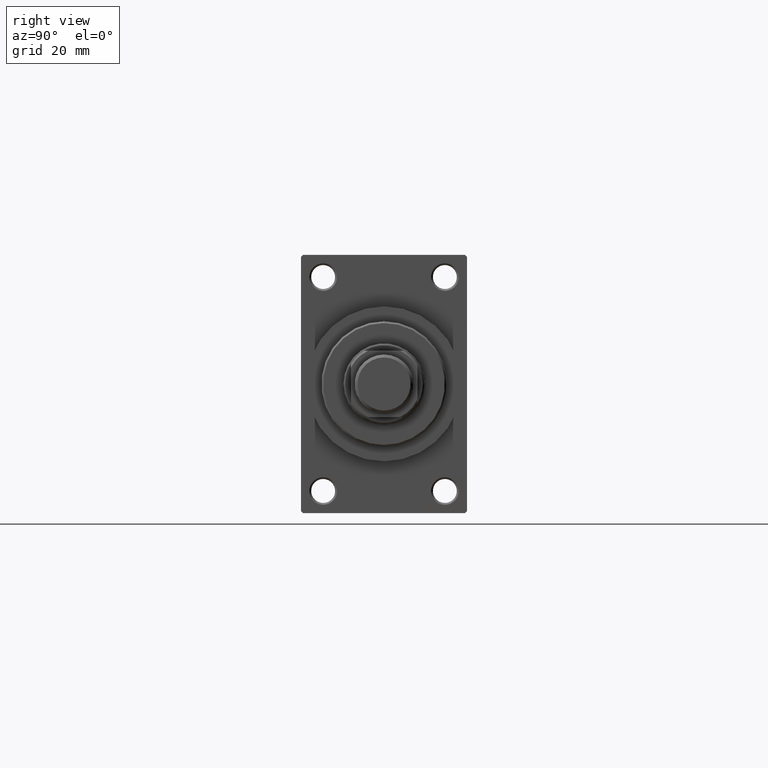
[diagram: clean part render]
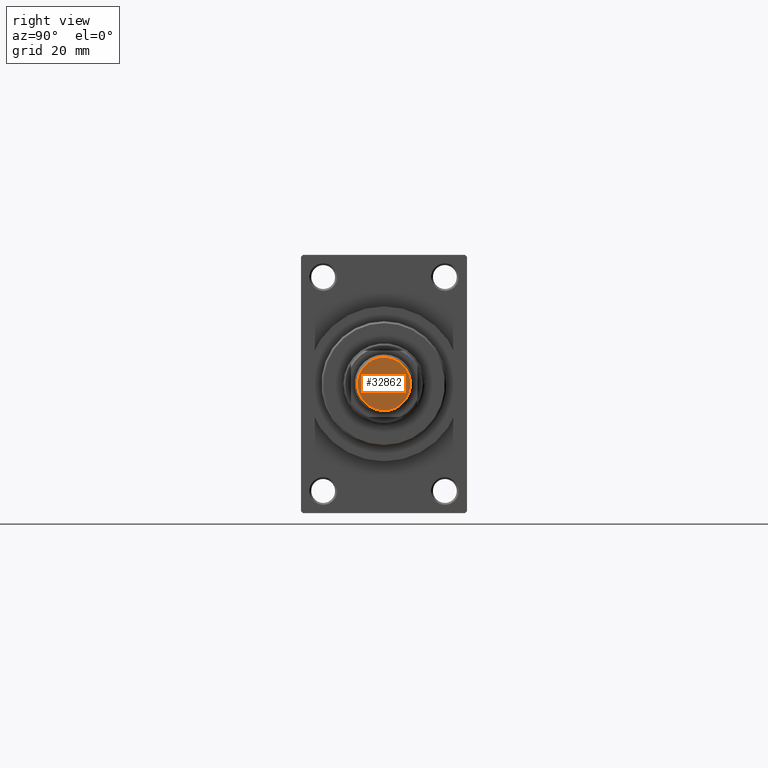
[diagram: same view with one face highlighted and labeled with its STEP entity id]
A machine part, right view. The second image highlights one B-rep face of the part: STEP entity #32862.
In plain terms, the highlighted planar face has unit normal (-1, 0, 0).
Its self-contained STEP definition (entity closure, byte-faithful):
#4694 = AXIS2_PLACEMENT_3D ( 'NONE', #24652, #24419, #39566 ) ;
#5450 = EDGE_CURVE ( 'NONE', #11461, #24158, #29632, .T. ) ;
#7367 = DIRECTION ( 'NONE',  ( -0.000000000000000000, -0.000000000000000000, -1.000000000000000000 ) ) ;
#11461 = VERTEX_POINT ( 'NONE', #20613 ) ;
#11936 = DIRECTION ( 'NONE',  ( 1.000000000000000000, 0.000000000000000000, 0.000000000000000000 ) ) ;
#13821 = FACE_OUTER_BOUND ( 'NONE', #17205, .T. ) ;
#15857 = AXIS2_PLACEMENT_3D ( 'NONE', #30215, #7367, #11936 ) ;
#17205 = EDGE_LOOP ( 'NONE', ( #39852, #39371 ) ) ;
#20613 = CARTESIAN_POINT ( 'NONE',  ( -7.199999999999987743, 9.307315673519877571E-16, 0.000000000000000000 ) ) ;
#20806 = CARTESIAN_POINT ( 'NONE',  ( 7.199999999999987743, 0.000000000000000000, 0.000000000000000000 ) ) ;
#23521 = AXIS2_PLACEMENT_3D ( 'NONE', #43296, #39688, #28598 ) ;
#24158 = VERTEX_POINT ( 'NONE', #20806 ) ;
#24419 = DIRECTION ( 'NONE',  ( 0.000000000000000000, 0.000000000000000000, 1.000000000000000000 ) ) ;
#24652 = CARTESIAN_POINT ( 'NONE',  ( 0.000000000000000000, 0.000000000000000000, 0.000000000000000000 ) ) ;
#28598 = DIRECTION ( 'NONE',  ( 1.000000000000000000, 0.000000000000000000, 0.000000000000000000 ) ) ;
#29632 = CIRCLE ( 'NONE', #15857, 7.199999999999987743 ) ;
#30215 = CARTESIAN_POINT ( 'NONE',  ( 0.000000000000000000, 0.000000000000000000, 0.000000000000000000 ) ) ;
#32862 = ADVANCED_FACE ( 'NONE', ( #13821 ), #39101, .F. ) ;
#37051 = EDGE_CURVE ( 'NONE', #24158, #11461, #44258, .T. ) ;
#39101 = PLANE ( 'NONE',  #4694 ) ;
#39371 = ORIENTED_EDGE ( 'NONE', *, *, #5450, .T. ) ;
#39566 = DIRECTION ( 'NONE',  ( 1.000000000000000000, 0.000000000000000000, -0.000000000000000000 ) ) ;
#39688 = DIRECTION ( 'NONE',  ( -0.000000000000000000, -0.000000000000000000, -1.000000000000000000 ) ) ;
#39852 = ORIENTED_EDGE ( 'NONE', *, *, #37051, .T. ) ;
#43296 = CARTESIAN_POINT ( 'NONE',  ( 0.000000000000000000, 0.000000000000000000, 0.000000000000000000 ) ) ;
#44258 = CIRCLE ( 'NONE', #23521, 7.199999999999987743 ) ;